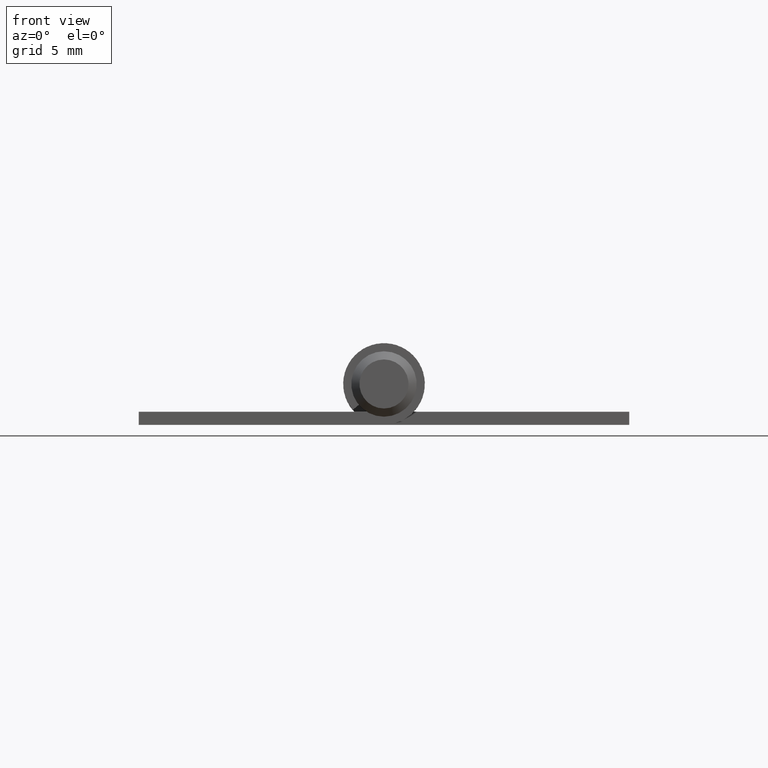
[diagram: clean part render]
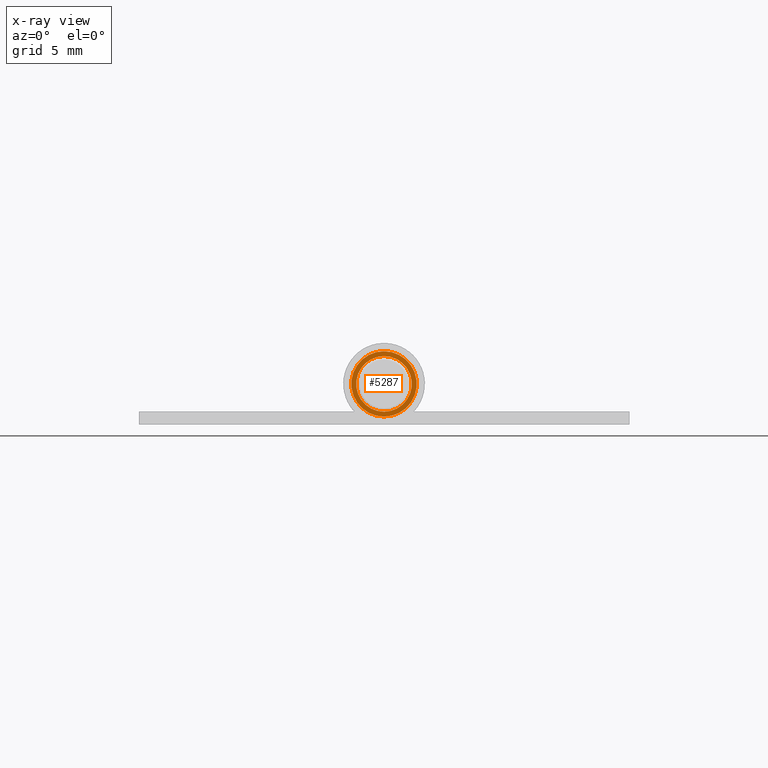
[diagram: x-ray — body ghosted, one internal face saturated and labeled with its STEP entity id]
A machine part, front view, then the same camera in x-ray: the body is ghosted and one INTERNAL B-rep face — a face not visible from any outside direction — is saturated and labeled: STEP entity #5287.
In plain terms, the highlighted planar face has unit normal (0, 1, 0).
Its self-contained STEP definition (entity closure, byte-faithful):
#17 = DIRECTION ( 'NONE',  ( 0.000000000000000000, -1.000000000000000000, 0.000000000000000000 ) ) ;
#53 = DIRECTION ( 'NONE',  ( 0.000000000000000000, 0.000000000000000000, -1.000000000000000000 ) ) ;
#85 = CARTESIAN_POINT ( 'NONE',  ( 0.000000000000000000, -15.05000000000000071, 0.000000000000000000 ) ) ;
#242 = VERTEX_POINT ( 'NONE', #3815 ) ;
#406 = EDGE_CURVE ( 'NONE', #242, #242, #3271, .T. ) ;
#832 = DIRECTION ( 'NONE',  ( 0.000000000000000000, 0.000000000000000000, 1.000000000000000000 ) ) ;
#972 = ORIENTED_EDGE ( 'NONE', *, *, #406, .F. ) ;
#1285 = EDGE_CURVE ( 'NONE', #4303, #4303, #8504, .T. ) ;
#1687 = FACE_BOUND ( 'NONE', #5555, .T. ) ;
#1943 = PLANE ( 'NONE',  #3800 ) ;
#2344 = CARTESIAN_POINT ( 'NONE',  ( 0.000000000000000000, -15.05000000000000071, -2.000000000000000000 ) ) ;
#3271 = CIRCLE ( 'NONE', #6554, 1.699999999999999956 ) ;
#3800 = AXIS2_PLACEMENT_3D ( 'NONE', #7206, #7899, #4125 ) ;
#3815 = CARTESIAN_POINT ( 'NONE',  ( 0.000000000000000000, -15.05000000000000071, 1.699999999999999956 ) ) ;
#4085 = ORIENTED_EDGE ( 'NONE', *, *, #1285, .F. ) ;
#4125 = DIRECTION ( 'NONE',  ( 0.000000000000000000, 0.000000000000000000, -1.000000000000000000 ) ) ;
#4303 = VERTEX_POINT ( 'NONE', #2344 ) ;
#4869 = AXIS2_PLACEMENT_3D ( 'NONE', #85, #17, #53 ) ;
#5287 = ADVANCED_FACE ( 'NONE', ( #1687, #9392 ), #1943, .T. ) ;
#5555 = EDGE_LOOP ( 'NONE', ( #972 ) ) ;
#6002 = EDGE_LOOP ( 'NONE', ( #4085 ) ) ;
#6554 = AXIS2_PLACEMENT_3D ( 'NONE', #7640, #9068, #832 ) ;
#7206 = CARTESIAN_POINT ( 'NONE',  ( 2.000000000000000000, -15.05000000000000071, 0.000000000000000000 ) ) ;
#7640 = CARTESIAN_POINT ( 'NONE',  ( 0.000000000000000000, -15.05000000000000071, 0.000000000000000000 ) ) ;
#7899 = DIRECTION ( 'NONE',  ( -0.000000000000000000, 1.000000000000000000, 0.000000000000000000 ) ) ;
#8504 = CIRCLE ( 'NONE', #4869, 2.000000000000000000 ) ;
#9068 = DIRECTION ( 'NONE',  ( -0.000000000000000000, 1.000000000000000000, -0.000000000000000000 ) ) ;
#9392 = FACE_OUTER_BOUND ( 'NONE', #6002, .T. ) ;